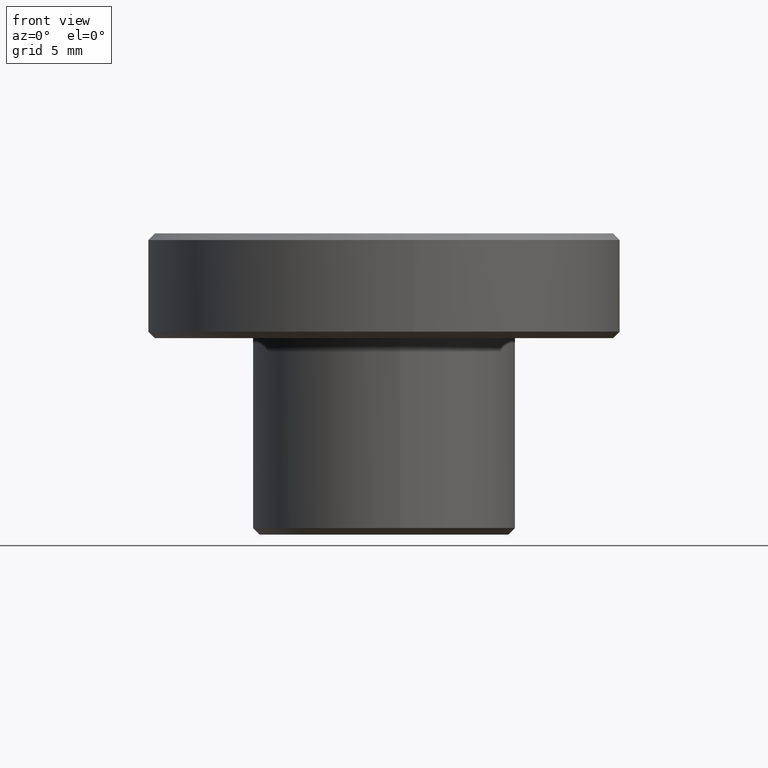
[diagram: clean part render]
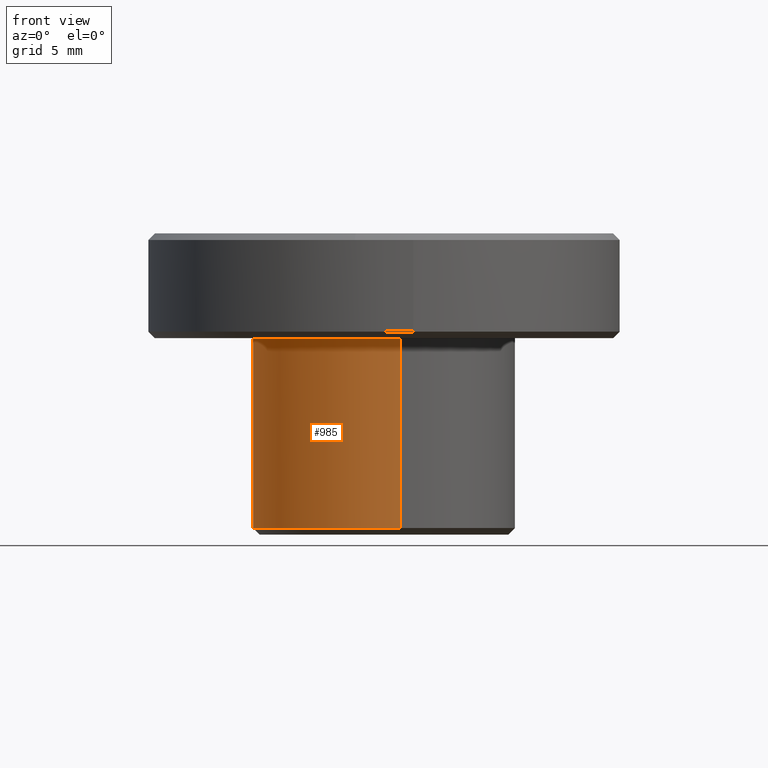
[diagram: same view with one face highlighted and labeled with its STEP entity id]
A machine part, front view. The second image highlights one B-rep face of the part: STEP entity #985.
In plain terms, the highlighted face is a freeform B-spline surface patch.
Its self-contained STEP definition (entity closure, byte-faithful):
#498=CARTESIAN_POINT('',(-4.042154319909006,-9.146638095721006,0.500000000002636));
#499=VERTEX_POINT('',#498);
#500=CARTESIAN_POINT('',(1.241268919189210,-9.922663527003707,0.499999999999942));
#501=VERTEX_POINT('',#500);
#502=CARTESIAN_POINT('',(-4.042154319909007,-9.146638095721006,0.500000000002636));
#503=CARTESIAN_POINT('',(-2.111156172552140,-9.999999999999998,0.499999999999945));
#504=CARTESIAN_POINT('',(0.0,-10.0,0.499999999999945));
#505=CARTESIAN_POINT('',(0.623043659552424,-10.000000000000002,0.499999999999945));
#506=CARTESIAN_POINT('',(1.241268919189210,-9.922663527003707,0.499999999999942));
#514=(BOUNDED_CURVE()B_SPLINE_CURVE(2,(#502,#503,#504,#505,#506),.UNSPECIFIED.,.F.,.U.)B_SPLINE_CURVE_WITH_KNOTS((3,2,3),(0.181361578458937,0.250000000000000,0.271473740287339),.UNSPECIFIED.)CURVE()GEOMETRIC_REPRESENTATION_ITEM()RATIONAL_B_SPLINE_CURVE((0.883326595750833,0.919585087122254,1.0,0.974841948349109,0.954005796436511))REPRESENTATION_ITEM(''));
#515=EDGE_CURVE('',#499,#501,#514,.T.);
#558=CARTESIAN_POINT('',(-0.087261004263184,9.999619268604203,0.499999999998073));
#559=VERTEX_POINT('',#558);
#616=CARTESIAN_POINT('',(-10.0,0.0,0.499999999999945));
#617=VERTEX_POINT('',#616);
#618=CARTESIAN_POINT('',(-10.0,0.0,0.499999999999945));
#619=CARTESIAN_POINT('',(-10.0,-6.513700025870834,0.499999999999945));
#620=CARTESIAN_POINT('',(-4.042154319909006,-9.146638095721007,0.500000000002636));
#628=(BOUNDED_CURVE()B_SPLINE_CURVE(2,(#618,#619,#620),.UNSPECIFIED.,.F.,.U.)B_SPLINE_CURVE_WITH_KNOTS((3,3),(0.0,0.181361578458937),.UNSPECIFIED.)CURVE()GEOMETRIC_REPRESENTATION_ITEM()RATIONAL_B_SPLINE_CURVE((1.0,0.787521694064293,0.883326595750833))REPRESENTATION_ITEM(''));
#629=EDGE_CURVE('',#617,#499,#628,.T.);
#631=CARTESIAN_POINT('',(-0.087261004263184,9.999619268604203,0.499999999998073));
#632=CARTESIAN_POINT('',(-10.0,9.913116419197188,0.499999999999945));
#633=CARTESIAN_POINT('',(-10.0,0.0,0.499999999999945));
#641=(BOUNDED_CURVE()B_SPLINE_CURVE(2,(#631,#632,#633),.UNSPECIFIED.,.F.,.U.)B_SPLINE_CURVE_WITH_KNOTS((3,3),(0.751539817697262,1.0),.UNSPECIFIED.)CURVE()GEOMETRIC_REPRESENTATION_ITEM()RATIONAL_B_SPLINE_CURVE((0.996414205461629,0.708910789833496,1.0))REPRESENTATION_ITEM(''));
#642=EDGE_CURVE('',#559,#617,#641,.T.);
#879=CARTESIAN_POINT('',(-0.087256334427209,9.999619309354777,15.0));
#880=VERTEX_POINT('',#879);
#881=CARTESIAN_POINT('',(-0.087261004263184,9.999619268604203,0.499999999998073));
#882=CARTESIAN_POINT('',(-0.087256334427209,9.999619309354777,15.0));
#883=QUASI_UNIFORM_CURVE('',1,(#881,#882),.UNSPECIFIED.,.F.,.U.);
#884=EDGE_CURVE('',#559,#880,#883,.T.);
#903=CARTESIAN_POINT('',(1.241279027887399,-9.922662262463934,15.0));
#904=VERTEX_POINT('',#903);
#918=CARTESIAN_POINT('',(1.241268919189210,-9.922663527003707,0.499999999999942));
#919=CARTESIAN_POINT('',(1.241279027887399,-9.922662262463934,15.0));
#920=QUASI_UNIFORM_CURVE('',1,(#918,#919),.UNSPECIFIED.,.F.,.U.);
#921=EDGE_CURVE('',#501,#904,#920,.T.);
#926=CARTESIAN_POINT('',(-0.087265354983739,9.999619230641709,0.137499999999943));
#927=CARTESIAN_POINT('',(-10.086884585625448,9.912353875657971,0.137499999999943));
#928=CARTESIAN_POINT('',(-9.999619230641709,-0.087265354983739,0.137499999999943));
#929=CARTESIAN_POINT('',(-9.912353875657971,-10.086884585625448,0.137499999999943));
#930=CARTESIAN_POINT('',(0.087265354983739,-9.999619230641709,0.137499999999943));
#931=CARTESIAN_POINT('',(0.666501589581736,-9.994564312602755,0.137499999999943));
#932=CARTESIAN_POINT('',(1.241280020798293,-9.922662138255385,0.137499999999943));
#933=CARTESIAN_POINT('',(-0.087265354983739,9.999619230641709,15.371562500000000));
#934=CARTESIAN_POINT('',(-10.086884585625448,9.912353875657971,15.371562500000001));
#935=CARTESIAN_POINT('',(-9.999619230641709,-0.087265354983739,15.371562500000000));
#936=CARTESIAN_POINT('',(-9.912353875657971,-10.086884585625448,15.371562500000001));
#937=CARTESIAN_POINT('',(0.087265354983739,-9.999619230641709,15.371562500000000));
#938=CARTESIAN_POINT('',(0.666501589581736,-9.994564312602755,15.371562500000001));
#939=CARTESIAN_POINT('',(1.241280020798293,-9.922662138255385,15.371562500000005));
#947=(BOUNDED_SURFACE()B_SPLINE_SURFACE(2,1,((#926,#933),(#927,#934),(#928,#935),(#929,#936),(#930,#937),(#931,#938),(#932,#939)),.UNSPECIFIED.,.F.,.F.,.U.)B_SPLINE_SURFACE_WITH_KNOTS((3,2,2,3),(2,2),(0.0,16.568542494923800,33.137084989847587,34.462568389441500),(0.0,15.234062500000061),.UNSPECIFIED.)GEOMETRIC_REPRESENTATION_ITEM()RATIONAL_B_SPLINE_SURFACE(((1.0,1.0),(0.707106781186548,0.707106781186548),(1.0,1.0),(0.707106781186548,0.707106781186548),(1.0,1.0),(0.976568542494924,0.976568542494924),(0.956886118190660,0.956886118190660)))REPRESENTATION_ITEM('')SURFACE());
#948=ORIENTED_EDGE('',*,*,#629,.T.);
#949=ORIENTED_EDGE('',*,*,#515,.T.);
#950=ORIENTED_EDGE('',*,*,#921,.T.);
#951=CARTESIAN_POINT('',(-10.0,0.0,15.0));
#952=VERTEX_POINT('',#951);
#953=CARTESIAN_POINT('',(1.241279027887399,-9.922662262463934,15.000000000000002));
#954=CARTESIAN_POINT('',(0.623048773067885,-10.0,15.000000000000002));
#955=CARTESIAN_POINT('',(0.0,-10.0,15.0));
#956=CARTESIAN_POINT('',(-10.000000000000002,-10.000000000000002,14.999999999999995));
#957=CARTESIAN_POINT('',(-10.0,0.0,15.0));
#965=(BOUNDED_CURVE()B_SPLINE_CURVE(2,(#953,#954,#955,#956,#957),.UNSPECIFIED.,.F.,.U.)B_SPLINE_CURVE_WITH_KNOTS((3,2,3),(0.728526087904849,0.750000000000000,1.0),.UNSPECIFIED.)CURVE()GEOMETRIC_REPRESENTATION_ITEM()RATIONAL_B_SPLINE_CURVE((0.954005463023639,0.974841747063736,1.0,0.707106781186548,1.0))REPRESENTATION_ITEM(''));
#966=EDGE_CURVE('',#904,#952,#965,.T.);
#967=ORIENTED_EDGE('',*,*,#966,.T.);
#968=CARTESIAN_POINT('',(-10.0,0.0,15.0));
#969=CARTESIAN_POINT('',(-10.0,9.913121048813546,15.0));
#970=CARTESIAN_POINT('',(-0.087256334427209,9.999619309354777,15.000000000000005));
#978=(BOUNDED_CURVE()B_SPLINE_CURVE(2,(#968,#969,#970),.UNSPECIFIED.,.F.,.U.)B_SPLINE_CURVE_WITH_KNOTS((3,3),(0.0,0.248460264561681),.UNSPECIFIED.)CURVE()GEOMETRIC_REPRESENTATION_ITEM()RATIONAL_B_SPLINE_CURVE((1.0,0.708910693461149,0.996414395832051))REPRESENTATION_ITEM(''));
#979=EDGE_CURVE('',#952,#880,#978,.T.);
#980=ORIENTED_EDGE('',*,*,#979,.T.);
#981=ORIENTED_EDGE('',*,*,#884,.F.);
#982=ORIENTED_EDGE('',*,*,#642,.T.);
#983=EDGE_LOOP('',(#948,#949,#950,#967,#980,#981,#982));
#984=FACE_OUTER_BOUND('',#983,.T.);
#985=ADVANCED_FACE('',(#984),#947,.T.);